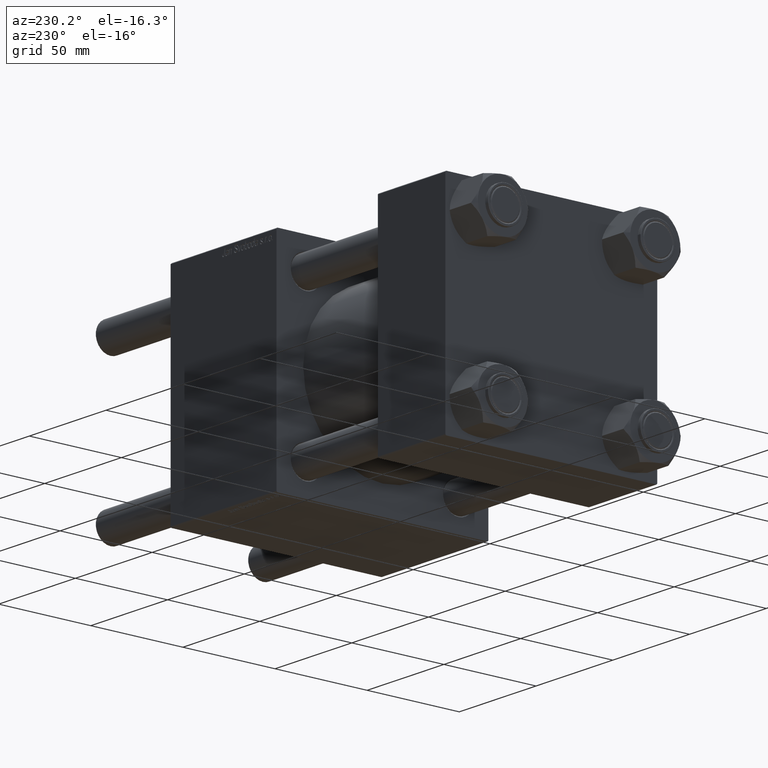
[diagram: clean part render]
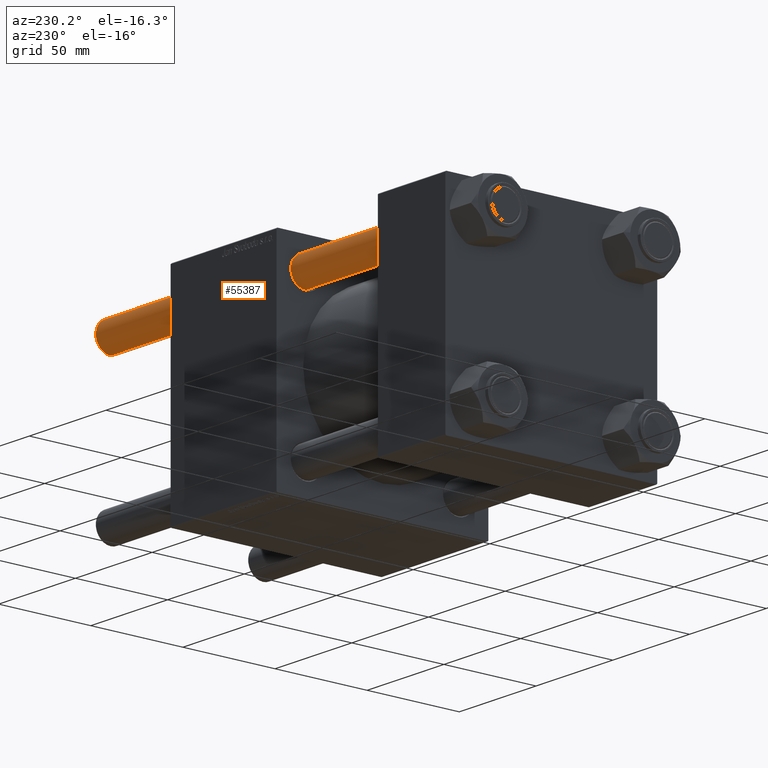
[diagram: same view with one face highlighted and labeled with its STEP entity id]
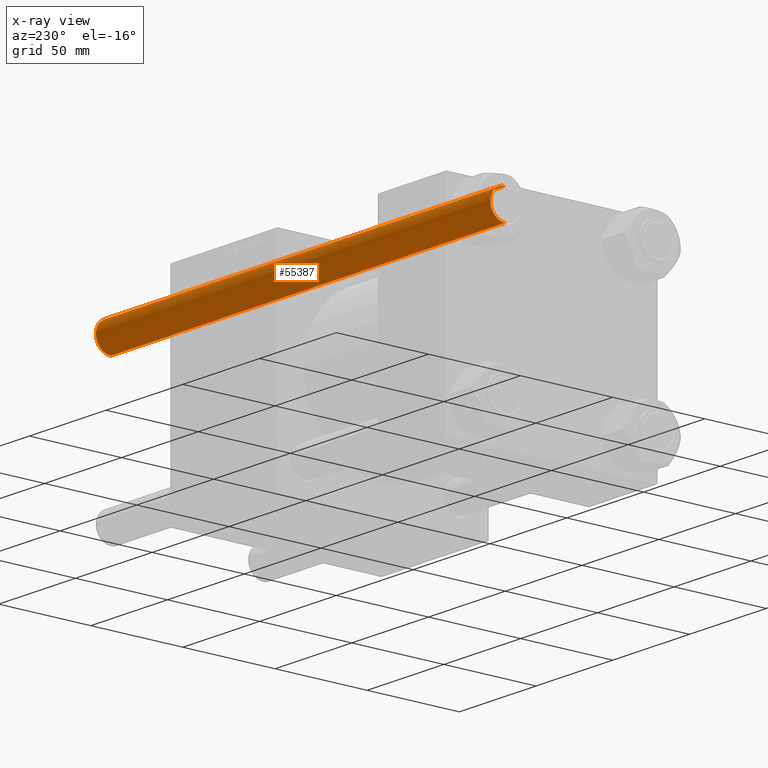
[diagram: x-ray of the same camera — body ghosted, the highlighted face saturated]
A machine part, auxiliary view. The second image highlights one B-rep face of the part: STEP entity #55387.
The next image is the same camera in x-ray: the body ghosted, the highlighted face saturated — about 0% of this face is hidden behind the body in this view.
In plain terms, the highlighted cylindrical surface (edge-blend (fillet) strip) has radius 8 mm, axis along (1, -0, -0).
Its self-contained STEP definition (entity closure, byte-faithful):
#488 = AXIS2_PLACEMENT_3D ( 'NONE', #38865, #56505, #25574 ) ;
#3754 = CARTESIAN_POINT ( 'NONE',  ( 8.000000000000000000, 9.797174393178825657E-16, 258.0000000000000000 ) ) ;
#7815 = DIRECTION ( 'NONE',  ( -0.000000000000000000, -0.000000000000000000, -1.000000000000000000 ) ) ;
#7863 = ORIENTED_EDGE ( 'NONE', *, *, #8220, .T. ) ;
#8220 = EDGE_CURVE ( 'NONE', #52770, #22289, #46816, .T. ) ;
#9489 = VERTEX_POINT ( 'NONE', #45258 ) ;
#18011 = CIRCLE ( 'NONE', #488, 8.000000000000000000 ) ;
#22289 = VERTEX_POINT ( 'NONE', #38667 ) ;
#22552 = AXIS2_PLACEMENT_3D ( 'NONE', #35996, #27324, #44098 ) ;
#25056 = EDGE_LOOP ( 'NONE', ( #39073, #7863, #37461, #29449 ) ) ;
#25331 = VECTOR ( 'NONE', #56930, 1000.000000000000000 ) ;
#25574 = DIRECTION ( 'NONE',  ( 1.000000000000000000, 0.000000000000000000, 0.000000000000000000 ) ) ;
#26538 = DIRECTION ( 'NONE',  ( -1.000000000000000000, 0.000000000000000000, 0.000000000000000000 ) ) ;
#27324 = DIRECTION ( 'NONE',  ( 0.000000000000000000, 0.000000000000000000, -1.000000000000000000 ) ) ;
#28524 = CARTESIAN_POINT ( 'NONE',  ( 8.000000000000000000, 9.797174393178825657E-16, 257.4999999999999432 ) ) ;
#29449 = ORIENTED_EDGE ( 'NONE', *, *, #50126, .F. ) ;
#29470 = CARTESIAN_POINT ( 'NONE',  ( -8.000000000000000000, 0.000000000000000000, 258.0000000000000000 ) ) ;
#29563 = EDGE_CURVE ( 'NONE', #9489, #52770, #29926, .T. ) ;
#29926 = CIRCLE ( 'NONE', #22552, 8.000000000000000000 ) ;
#30870 = CARTESIAN_POINT ( 'NONE',  ( 0.000000000000000000, 0.000000000000000000, 258.0000000000000000 ) ) ;
#30887 = AXIS2_PLACEMENT_3D ( 'NONE', #30870, #52000, #26538 ) ;
#31718 = EDGE_CURVE ( 'NONE', #22289, #42476, #18011, .T. ) ;
#34089 = LINE ( 'NONE', #29470, #25331 ) ;
#34362 = CYLINDRICAL_SURFACE ( 'NONE', #30887, 8.000000000000000000 ) ;
#35996 = CARTESIAN_POINT ( 'NONE',  ( 0.000000000000000000, 0.000000000000000000, 257.4999999999999432 ) ) ;
#37461 = ORIENTED_EDGE ( 'NONE', *, *, #31718, .T. ) ;
#38667 = CARTESIAN_POINT ( 'NONE',  ( 8.000000000000000000, 9.797174393178825657E-16, 0.4999999999999449329 ) ) ;
#38865 = CARTESIAN_POINT ( 'NONE',  ( 0.000000000000000000, 0.000000000000000000, 0.4999999999999449329 ) ) ;
#39073 = ORIENTED_EDGE ( 'NONE', *, *, #29563, .T. ) ;
#39551 = FACE_OUTER_BOUND ( 'NONE', #25056, .T. ) ;
#42476 = VERTEX_POINT ( 'NONE', #54720 ) ;
#44098 = DIRECTION ( 'NONE',  ( 1.000000000000000000, 0.000000000000000000, 0.000000000000000000 ) ) ;
#45258 = CARTESIAN_POINT ( 'NONE',  ( -8.000000000000000000, 0.000000000000000000, 257.4999999999999432 ) ) ;
#46816 = LINE ( 'NONE', #3754, #50690 ) ;
#50126 = EDGE_CURVE ( 'NONE', #9489, #42476, #34089, .T. ) ;
#50690 = VECTOR ( 'NONE', #7815, 1000.000000000000000 ) ;
#52000 = DIRECTION ( 'NONE',  ( -0.000000000000000000, -0.000000000000000000, -1.000000000000000000 ) ) ;
#52770 = VERTEX_POINT ( 'NONE', #28524 ) ;
#54720 = CARTESIAN_POINT ( 'NONE',  ( -8.000000000000000000, 0.000000000000000000, 0.4999999999999449329 ) ) ;
#55387 = ADVANCED_FACE ( 'NONE', ( #39551 ), #34362, .T. ) ;
#56505 = DIRECTION ( 'NONE',  ( -0.000000000000000000, -0.000000000000000000, 1.000000000000000000 ) ) ;
#56930 = DIRECTION ( 'NONE',  ( -0.000000000000000000, -0.000000000000000000, -1.000000000000000000 ) ) ;